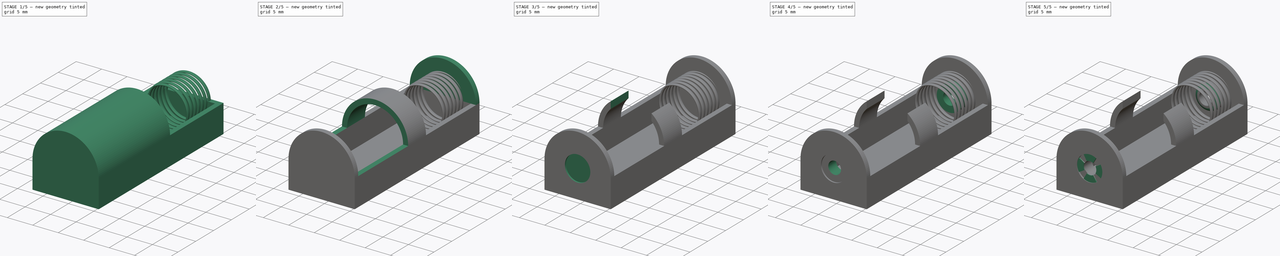
[diagram: build sequence overview — one tinted view per stage of 5, left to right]
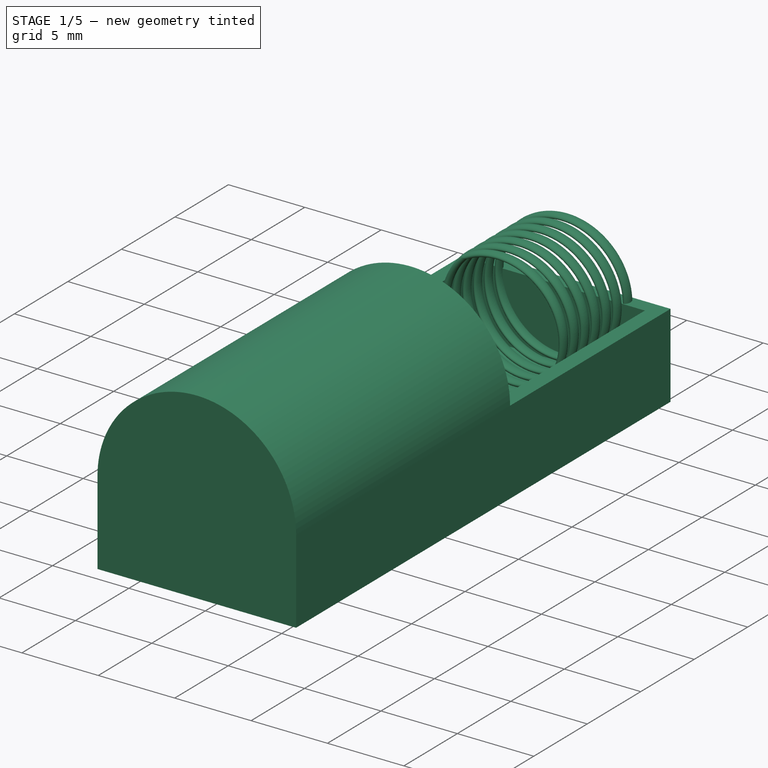
[diagram: stage 1 of 5 — iso view after this stage's code; geometry added in this stage tinted green]
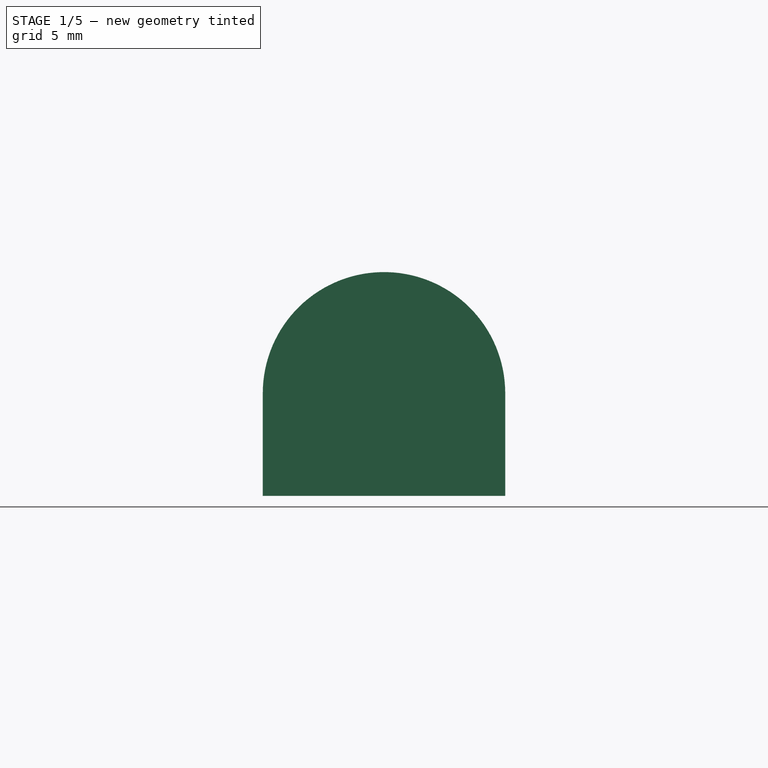
[diagram: stage 1 of 5 — front view after this stage's code; geometry added in this stage tinted green]
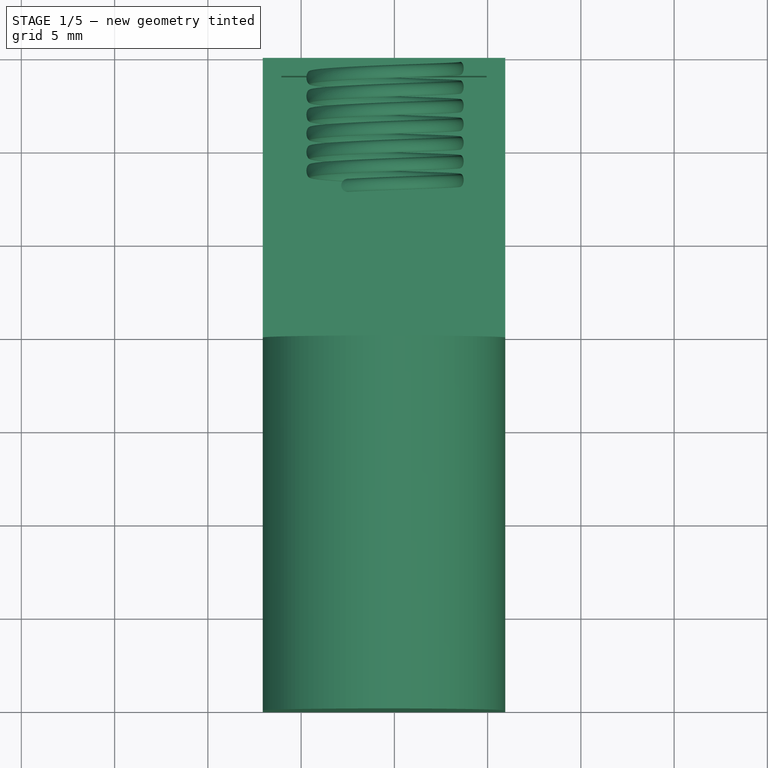
[diagram: stage 1 of 5 — top view after this stage's code; geometry added in this stage tinted green]
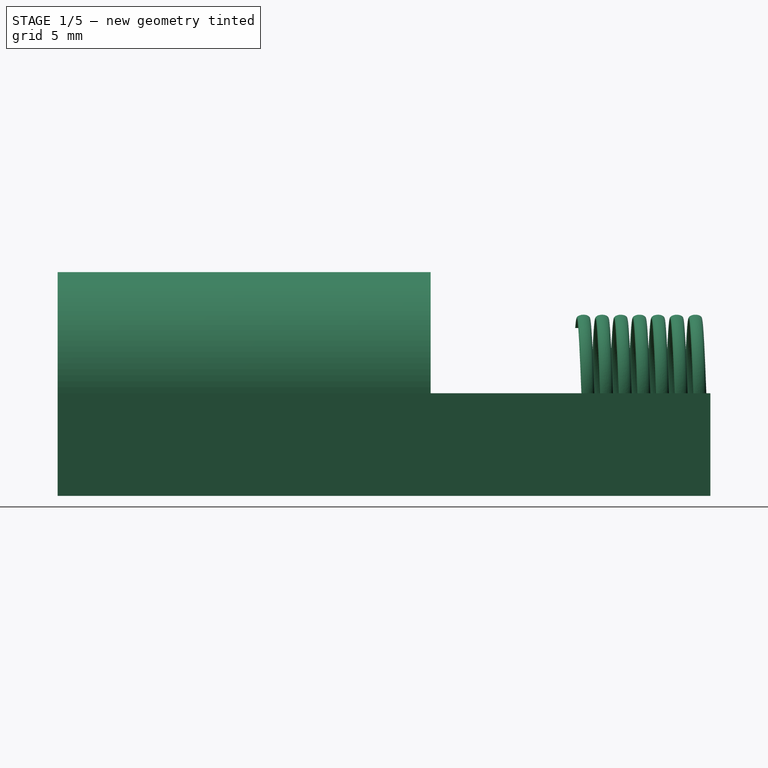
[diagram: stage 1 of 5 — right view after this stage's code; geometry added in this stage tinted green]
FCSTD DOCUMENT  (FreeCAD 0.19R24276 (Git))
Label: porta pila 1
License: All rights reserved
LicenseURL: http://en.wikipedia.org/wiki/All_rights_reserved
objects: Sketcher::SketchObject×16, PartDesign::Pocket×8, PartDesign::Pad×7, PartDesign::Fillet×2, PartDesign::Body×2, Part::Helix×1, Part::Sweep×1
note: 54 computed .brp shape members not serialized (recipe doc carries the construction recipe); baked Part::Feature solids carry a one-line shape summary decoded from their .brp

FEATURE [Sketcher::SketchObject] Sketch
  FullyConstrained = false
  MapMode = 5
  Support = -> [XY_Plane]
  sketch-geometry (4):
    g0: LineSegment StartX=-2.05522 StartY=0 StartZ=0 EndX=10.9448 EndY=0 EndZ=0
    g1: LineSegment StartX=10.9448 StartY=0 StartZ=0 EndX=10.9448 EndY=-35 EndZ=0
    g2: LineSegment StartX=10.9448 StartY=-35 StartZ=0 EndX=-2.05522 EndY=-35 EndZ=0
    g3: LineSegment StartX=-2.05522 StartY=-35 StartZ=0 EndX=-2.05522 EndY=0 EndZ=0
  constraints (11):
    c: Coincident(g0,g1)
    c: Coincident(g1,g2)
    c: Coincident(g2,g3)
    c: Coincident(g3,g0)
    c: Horizontal(g0)
    c: Horizontal(g2)
    c: Vertical(g1)
    c: Vertical(g3)
    c: PointOnObject(g0,g-1)
    c: DistanceX(g0,g0) = 13
    c: DistanceY(g1,g1) = 35
FEATURE [PartDesign::Pad] Pad
  Direction = (1,1,1)
  Length = 5.5
  Length2 = 100
  Profile = -> Sketch
  Type = 0
FEATURE [Sketcher::SketchObject] Sketch001
  ExternalGeometry = -> [Pad]
  FullyConstrained = false
  MapMode = 5
  Placement = pos=(0,0,5.5) rot=(0,0,1;0rad)
  Support = -> [Pad]
  sketch-geometry (12):
    g0: LineSegment StartX=-2.05522 StartY=0 StartZ=0 EndX=-1.05522 EndY=0 EndZ=0
    g1: LineSegment StartX=-2.05522 StartY=0 StartZ=0 EndX=-2.05522 EndY=-1 EndZ=0
    g2: LineSegment StartX=10.9448 StartY=-35 StartZ=0 EndX=10.9448 EndY=-34 EndZ=0
    g3: LineSegment StartX=10.9448 StartY=-35 StartZ=0 EndX=9.94478 EndY=-35 EndZ=0
    g4: LineSegment StartX=-1.05522 StartY=0 StartZ=0 EndX=-1.05522 EndY=-0.96984 EndZ=0
    g5: LineSegment StartX=-1.05522 StartY=-0.96984 StartZ=0 EndX=-2.05522 EndY=-0.96984 EndZ=0
    g6: LineSegment StartX=10.9448 StartY=-34 StartZ=0 EndX=9.94478 EndY=-34 EndZ=0
    g7: LineSegment StartX=9.94478 StartY=-35 StartZ=0 EndX=9.94478 EndY=-34 EndZ=0
    g8: LineSegment StartX=-1.05522 StartY=-0.96984 StartZ=0 EndX=9.94478 EndY=-0.96984 EndZ=0
    g9: LineSegment StartX=9.94478 StartY=-0.96984 StartZ=0 EndX=9.94478 EndY=-34 EndZ=0
    g10: LineSegment StartX=9.94478 StartY=-34 StartZ=0 EndX=-1.05522 EndY=-34 EndZ=0
    g11: LineSegment StartX=-1.05522 StartY=-34 StartZ=0 EndX=-1.05522 EndY=-0.96984 EndZ=0
  constraints (33):
    c: Coincident(g0,g-3)
    c: Horizontal(g0)
    c: Coincident(g1,g0)
    c: Vertical(g1)
    c: DistanceX(g0,g0) = 1
    c: DistanceY(g1,g1) = 1
    c: Coincident(g2,g-4)
    c: Coincident(g3,g2)
    c: Horizontal(g3)
    c: Vertical(g2)
    c: DistanceX(g3,g3) = 1
    c: DistanceY(g2,g2) = 1
    c: Coincident(g4,g0)
    c: Vertical(g4)
    c: PointOnObject(g5,g1)
    c: Horizontal(g5)
    c: Coincident(g6,g2)
    c: Horizontal(g6)
    c: Coincident(g7,g3)
    c: Coincident(g7,g6)
    c: Vertical(g7)
    c: PointOnObject(g4,g5)
    c: PointOnObject(g5,g4)
    c: Coincident(g8,g9)
    c: Coincident(g9,g10)
    c: Coincident(g10,g11)
    c: Coincident(g11,g8)
    c: Horizontal(g8)
    c: Horizontal(g10)
    c: Vertical(g9)
    c: Vertical(g11)
    c: Coincident(g8,g4)
    c: Coincident(g9,g6)
FEATURE [PartDesign::Pocket] Pocket  label="vaciado base"
  BaseFeature = -> Pad
  Length = 4.5
  Length2 = 100
  Profile = -> Sketch001
  Type = 0
FEATURE [Sketcher::SketchObject] Sketch002
  ExternalGeometry = -> [Pocket]
  FullyConstrained = true
  MapMode = 5
  Placement = pos=(0,-35,0) rot=(1,0,0;1.5708rad)
  Support = -> [Pocket]
  sketch-geometry (3):
    g0: GeomPoint X=4.44478 Y=5.5 Z=0
    g1: ArcOfCircle CenterX=4.44478 CenterY=5.5 CenterZ=0 NormalX=0 NormalY=0 NormalZ=1 AngleXU=0 Radius=6.5 StartAngle=0 EndAngle=3.14159
    g2: LineSegment StartX=-2.05522 StartY=5.5 StartZ=0 EndX=10.9448 EndY=5.5 EndZ=0
  constraints (7):
    c: PointOnObject(g0,g-3)
    c: DistanceX(g-3,g0) = 6.5
    c: Coincident(g1,g0)
    c: Coincident(g2,g-3)
    c: Horizontal(g2)
    c: Coincident(g1,g2)
    c: Coincident(g1,g2)
FEATURE [PartDesign::Pad] Pad001  label="suoerficie circular"
  BaseFeature = -> Pocket
  Direction = (1,1,1)
  Length = 20
  Length2 = 100
  Profile = -> Sketch002
  Reversed = true
  Type = 0
FEATURE [PartDesign::Body] Body  label="base"
  Group = -> [Sketch,Pad,Sketch001,Pocket,Sketch002,Pad001,Sketch003,Pocket001,Sketch004,Pad002,Sketch005,Pocket002,Sketch006,Pocket003,Sketch007,Pocket004,Sketch008,Pocket005,Sketch009,Pad003,Sketch010,Pocket006,Sketch011,Pad004,Sketch012,Pocket007,Fillet,Fillet001,Sketch013,Pad005,Sketch014,Pad006]
  Origin = -> Origin
  Tip = -> Pad006
FEATURE [Part::Helix] Helix  label="Hélice"
  Angle = 0
  AttacherType = Attacher::AttachEngine3D
  Height = 6.5
  LocalCoord = 0
  Pitch = 1
  Placement = pos=(4.5,-1,5.5) rot=(1,0,0;1.5708rad)
  Radius = 3.5
  Style = 1
FEATURE [Sketcher::SketchObject] Sketch015
  AttachmentOffset = pos=(6,0.6,9) rot=(0,0,1;0rad)
  FullyConstrained = true
  MapMode = 5
  Placement = pos=(6,0.6,9) rot=(0,0,1;0rad)
  Support = -> [XY_Plane001]
  sketch-geometry (3):
    g0: LineSegment StartX=0 StartY=0 StartZ=0 EndX=-3.5 EndY=0 EndZ=0
    g1: LineSegment StartX=-3.5 StartY=0 StartZ=0 EndX=-3.5 EndY=-7.5 EndZ=0
    g2: Circle CenterX=-3.5 CenterY=-7.5 CenterZ=0 NormalX=0 NormalY=0 NormalZ=1 AngleXU=0 Radius=0.35
  constraints (8):
    c: Coincident(g0,g-1)
    c: Horizontal(g0)
    c: Coincident(g1,g0)
    c: Vertical(g1)
    c: DistanceX(g0,g0) = 3.5
    c: DistanceY(g1,g1) = 7.5
    c: Coincident(g2,g1)
    c: Diameter(g2) = 0.7
FEATURE [PartDesign::Body] Body001
  Group = -> [Sketch015]
  Origin = -> Origin001
  Placement = pos=(4.5,0,5.5) rot=(0,0,1;0rad)
FEATURE [Part::Sweep] Sweep
  Frenet = true
  Sections = -> [Sketch015]
  Solid = true
  Spine = -> Helix [Edge1,Edge2,Edge3,Edge4,Edge5,Edge6,Edge7]
  Transition = 1
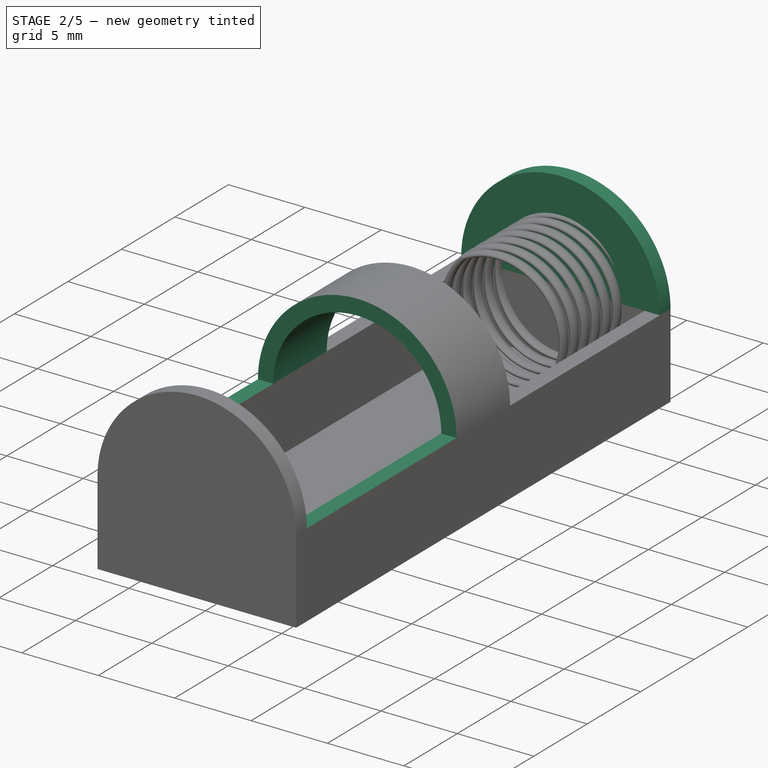
[diagram: stage 2 of 5 — iso view after this stage's code; geometry added in this stage tinted green]
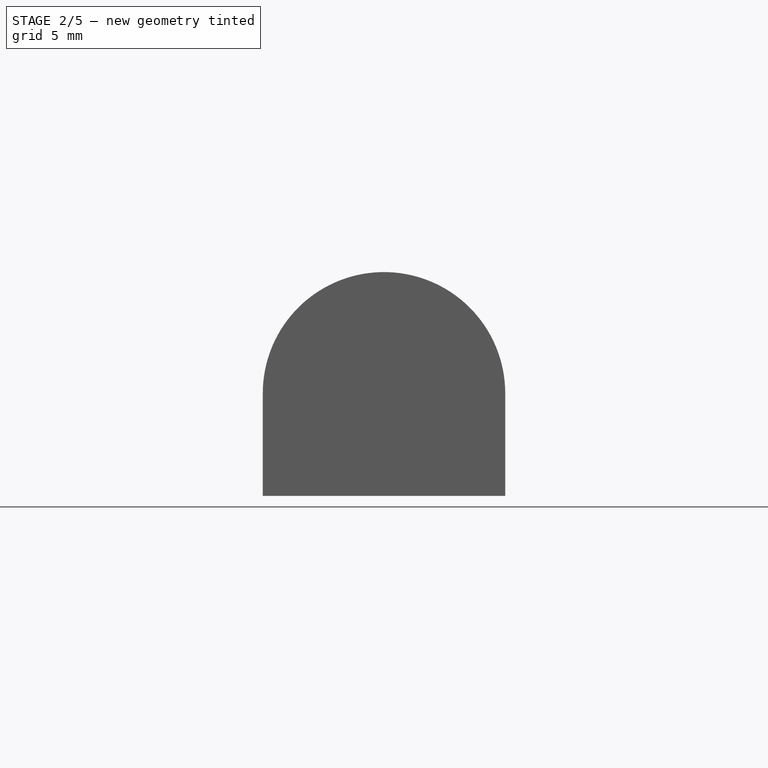
[diagram: stage 2 of 5 — front view after this stage's code; geometry added in this stage tinted green]
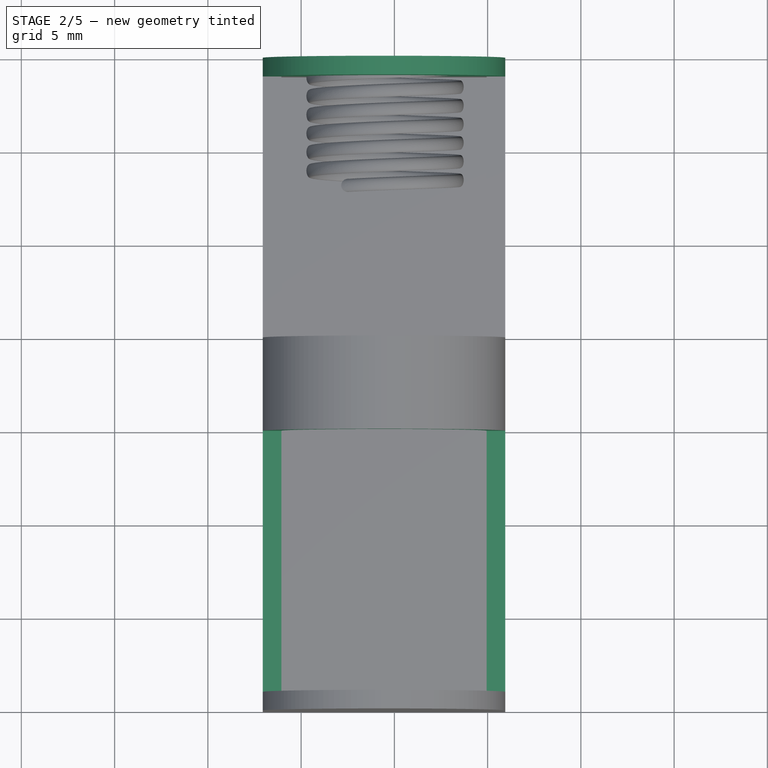
[diagram: stage 2 of 5 — top view after this stage's code; geometry added in this stage tinted green]
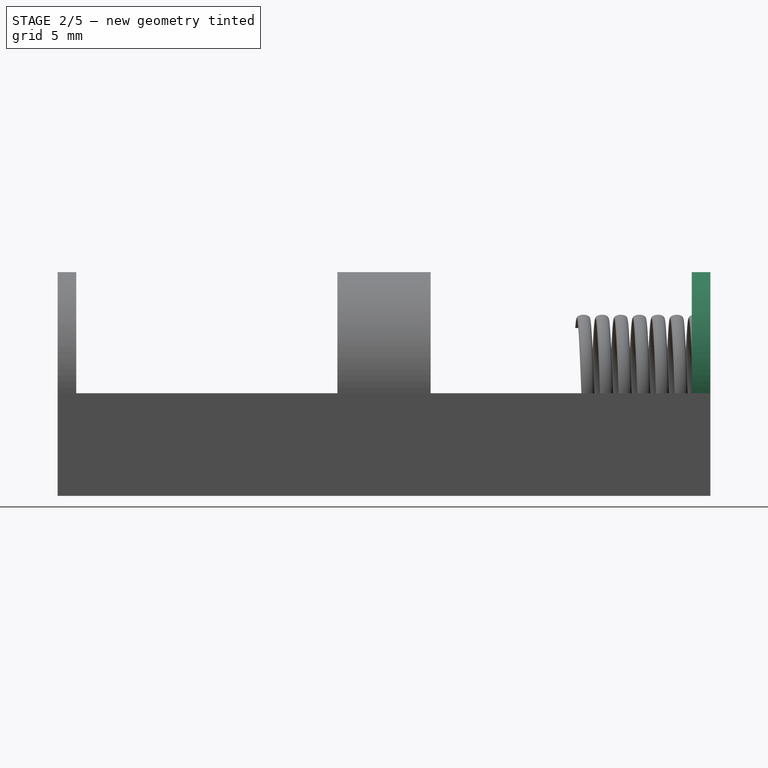
[diagram: stage 2 of 5 — right view after this stage's code; geometry added in this stage tinted green]
FEATURE [Sketcher::SketchObject] Sketch003
  ExternalGeometry = -> [Pad001]
  FullyConstrained = false
  MapMode = 5
  Placement = pos=(10.9448,0,0) rot=(0.57735,0.57735,0.57735;2.0944rad)
  Support = -> [Pad001]
  sketch-geometry (6):
    g0: LineSegment StartX=-35 StartY=5.5 StartZ=0 EndX=-34 EndY=5.5 EndZ=0
    g1: LineSegment StartX=-15 StartY=5.5 StartZ=0 EndX=-20 EndY=5.5 EndZ=0
    g2: LineSegment StartX=-34 StartY=5.5 StartZ=0 EndX=-20 EndY=5.5 EndZ=0
    g3: LineSegment StartX=-20 StartY=5.5 StartZ=0 EndX=-20 EndY=13.6203 EndZ=0
    g4: LineSegment StartX=-20 StartY=13.6203 StartZ=0 EndX=-34 EndY=13.6203 EndZ=0
    g5: LineSegment StartX=-34 StartY=5.5 StartZ=0 EndX=-34 EndY=13.6203 EndZ=0
  constraints (15):
    c: Coincident(g0,g-4)
    c: Coincident(g1,g-3)
    c: Horizontal(g1)
    c: DistanceX(g1,g1) = 5
    c: Horizontal(g0)
    c: DistanceX(g0,g0) = 1
    c: Coincident(g2,g0)
    c: Coincident(g2,g1)
    c: Coincident(g3,g2)
    c: Coincident(g4,g3)
    c: Horizontal(g4)
    c: Coincident(g5,g2)
    c: Coincident(g5,g4)
    c: Vertical(g5)
    c: Vertical(g3)
FEATURE [PartDesign::Pocket] Pocket001  label="vaciado medio superficie"
  BaseFeature = -> Pad001
  Length = 5
  Length2 = 100
  Profile = -> Sketch003
  Type = 1
FEATURE [Sketcher::SketchObject] Sketch004
  ExternalGeometry = -> [Pocket001]
  FullyConstrained = true
  MapMode = 5
  Placement = pos=(0,0,0) rot=(0,0.707107,0.707107;3.14159rad)
  Support = -> [Pocket001]
  sketch-geometry (3):
    g0: GeomPoint X=-4.44478 Y=5.5 Z=0
    g1: ArcOfCircle CenterX=-4.44478 CenterY=5.5 CenterZ=0 NormalX=0 NormalY=0 NormalZ=1 AngleXU=0 Radius=6.5 StartAngle=0 EndAngle=3.14159
    g2: LineSegment StartX=2.05522 StartY=5.5 StartZ=0 EndX=-10.9448 EndY=5.5 EndZ=0
  constraints (6):
    c: PointOnObject(g0,g-3)
    c: Coincident(g1,g0)
    c: Coincident(g2,g-3)
    c: Coincident(g2,g-4)
    c: Coincident(g1,g2)
    c: Coincident(g1,g2)
FEATURE [PartDesign::Pad] Pad002
  BaseFeature = -> Pocket001
  Direction = (1,1,1)
  Length = 1
  Length2 = 100
  Profile = -> Sketch004
  Reversed = true
  Type = 0
FEATURE [Sketcher::SketchObject] Sketch005
  ExternalGeometry = -> [Pad002]
  FullyConstrained = true
  MapMode = 5
  Placement = pos=(0,-15,0) rot=(0,0.707107,0.707107;3.14159rad)
  Support = -> [Pad002]
  sketch-geometry (2):
    g0: ArcOfCircle CenterX=-4.44478 CenterY=5.5 CenterZ=0 NormalX=0 NormalY=0 NormalZ=1 AngleXU=0 Radius=5.5 StartAngle=0 EndAngle=3.14159
    g1: LineSegment StartX=1.05522 StartY=5.5 StartZ=0 EndX=-9.94478 EndY=5.5 EndZ=0
  constraints (6):
    c: Coincident(g0,g-3)
    c: PointOnObject(g-4,g0)
    c: Coincident(g1,g-4)
    c: Coincident(g1,g-4)
    c: Coincident(g0,g1)
    c: Coincident(g0,g1)
FEATURE [PartDesign::Pocket] Pocket002
  BaseFeature = -> Pad002
  Length = 5
  Length2 = 100
  Profile = -> Sketch005
  Type = 0
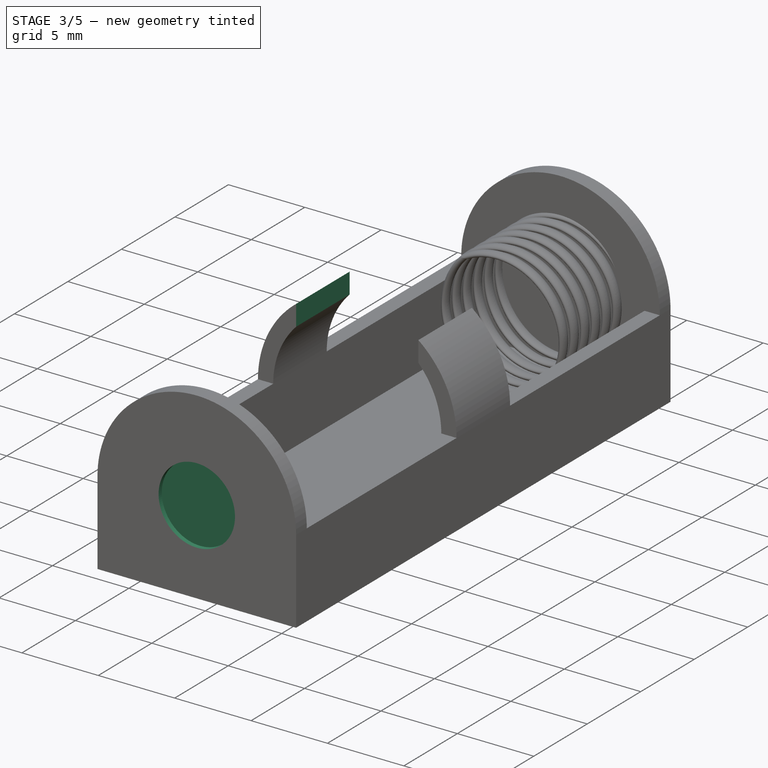
[diagram: stage 3 of 5 — iso view after this stage's code; geometry added in this stage tinted green]
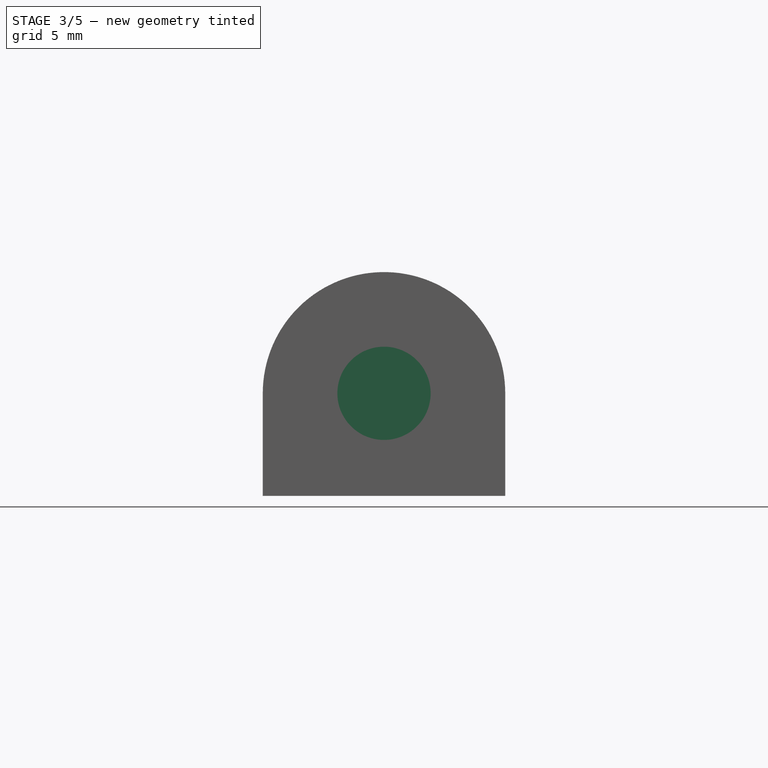
[diagram: stage 3 of 5 — front view after this stage's code; geometry added in this stage tinted green]
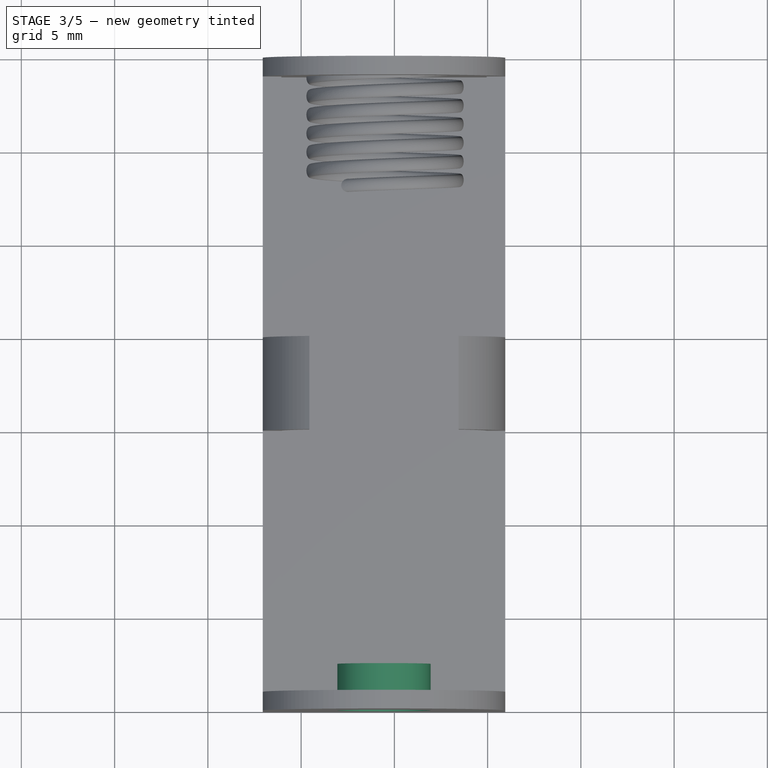
[diagram: stage 3 of 5 — top view after this stage's code; geometry added in this stage tinted green]
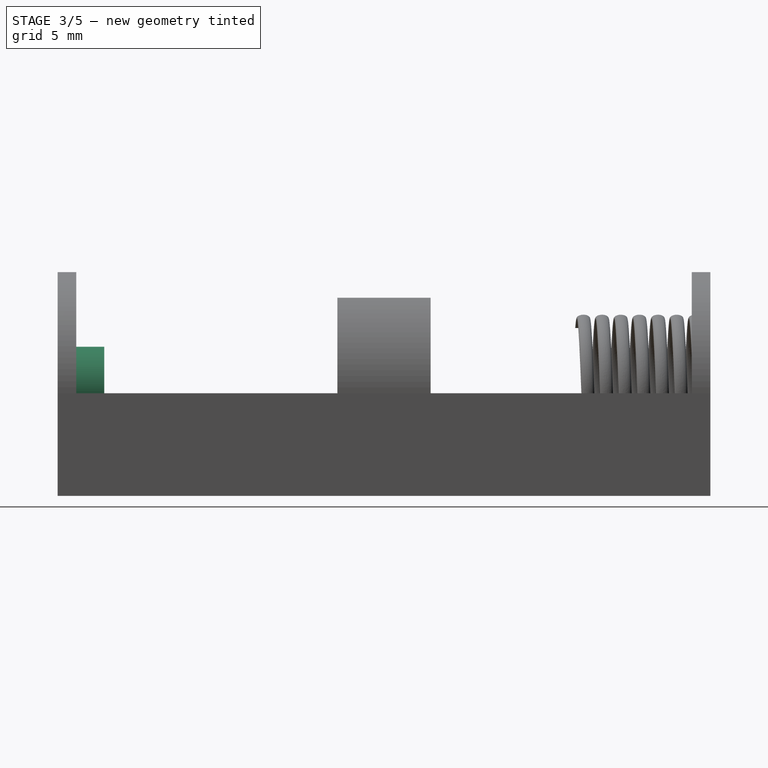
[diagram: stage 3 of 5 — right view after this stage's code; geometry added in this stage tinted green]
FEATURE [Sketcher::SketchObject] Sketch006
  ExternalGeometry = -> [Pocket002]
  FullyConstrained = false
  MapMode = 5
  Placement = pos=(0,-15,0) rot=(0,0.707107,0.707107;3.14159rad)
  Support = -> [Pocket002]
  sketch-geometry (6):
    g0: LineSegment StartX=-4.44478 StartY=5.5 StartZ=0 EndX=-0.444776 EndY=5.5 EndZ=0
    g1: LineSegment StartX=-0.444776 StartY=5.5 StartZ=0 EndX=-0.444776 EndY=16.4968 EndZ=0
    g2: LineSegment StartX=-0.444776 StartY=16.4968 StartZ=0 EndX=-4.44478 EndY=16.4968 EndZ=0
    g3: LineSegment StartX=-4.44478 StartY=16.4968 StartZ=0 EndX=-8.44478 EndY=16.4968 EndZ=0
    g4: LineSegment StartX=-4.44478 StartY=5.5 StartZ=0 EndX=-8.44478 EndY=5.5 EndZ=0
    g5: LineSegment StartX=-8.44478 StartY=5.5 StartZ=0 EndX=-8.44478 EndY=16.4968 EndZ=0
  constraints (14):
    c: Coincident(g0,g1)
    c: Coincident(g1,g2)
    c: Horizontal(g0)
    c: Horizontal(g2)
    c: Vertical(g1)
    c: Coincident(g0,g-4)
    c: Coincident(g3,g2)
    c: Coincident(g4,g0)
    c: Horizontal(g4)
    c: Coincident(g5,g4)
    c: Coincident(g5,g3)
    c: Vertical(g5)
    c: Horizontal(g3)
    c: DistanceX(g4,g4) = 4
FEATURE [PartDesign::Pocket] Pocket003
  BaseFeature = -> Pocket002
  Length = 5
  Length2 = 100
  Profile = -> Sketch006
  Type = 0
FEATURE [Sketcher::SketchObject] Sketch007
  ExternalGeometry = -> [Pocket003]
  FullyConstrained = true
  MapMode = 5
  Placement = pos=(0,0,0) rot=(0,0.707107,0.707107;3.14159rad)
  Support = -> [Pocket003]
  sketch-geometry (1):
    g0: Circle CenterX=-4.44478 CenterY=5.5 CenterZ=0 NormalX=0 NormalY=0 NormalZ=1 AngleXU=0 Radius=2.5
  constraints (2):
    c: Coincident(g0,g-3)
    c: Diameter(g0) = 5
FEATURE [PartDesign::Pocket] Pocket004  label="vaciado bot 0.3"
  BaseFeature = -> Pocket003
  Length = 0.3
  Length2 = 100
  Profile = -> Sketch007
  Type = 0
FEATURE [Sketcher::SketchObject] Sketch008
  ExternalGeometry = -> [Pocket004]
  FullyConstrained = true
  MapMode = 5
  Placement = pos=(0,-35,0) rot=(1,0,0;1.5708rad)
  Support = -> [Pocket004]
  sketch-geometry (1):
    g0: Circle CenterX=4.44478 CenterY=5.5 CenterZ=0 NormalX=0 NormalY=0 NormalZ=1 AngleXU=0 Radius=2.5
  constraints (2):
    c: Coincident(g0,g-3)
    c: Diameter(g0) = 5
FEATURE [PartDesign::Pocket] Pocket005  label="vaciado 0.3 front  circulo 5 mm"
  BaseFeature = -> Pocket004
  Length = 0.3
  Length2 = 100
  Profile = -> Sketch008
  Type = 0
FEATURE [Sketcher::SketchObject] Sketch009
  ExternalGeometry = -> [Pocket005]
  FullyConstrained = true
  MapMode = 5
  Placement = pos=(0,-34,0) rot=(0,0.707107,0.707107;3.14159rad)
  Support = -> [Pocket005]
  sketch-geometry (1):
    g0: Circle CenterX=-4.44478 CenterY=5.5 CenterZ=0 NormalX=0 NormalY=0 NormalZ=1 AngleXU=0 Radius=2.5
  constraints (2):
    c: Coincident(g0,g-3)
    c: Diameter(g0) = 5
FEATURE [PartDesign::Pad] Pad003  label="extrude 5 mm circular front"
  BaseFeature = -> Pocket005
  Direction = (1,1,1)
  Length = 1.5
  Length2 = 100
  Profile = -> Sketch009
  Type = 0
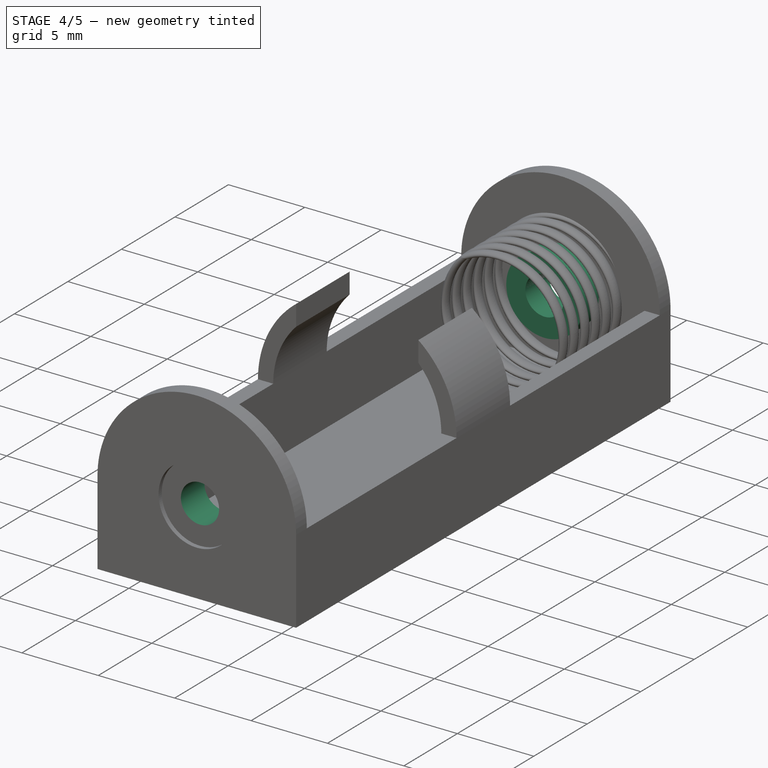
[diagram: stage 4 of 5 — iso view after this stage's code; geometry added in this stage tinted green]
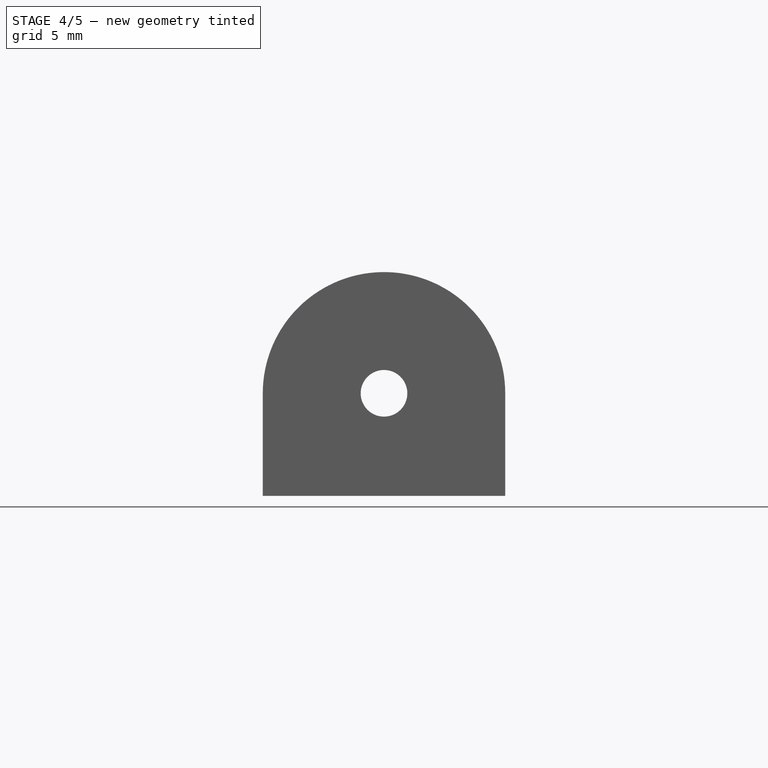
[diagram: stage 4 of 5 — front view after this stage's code; geometry added in this stage tinted green]
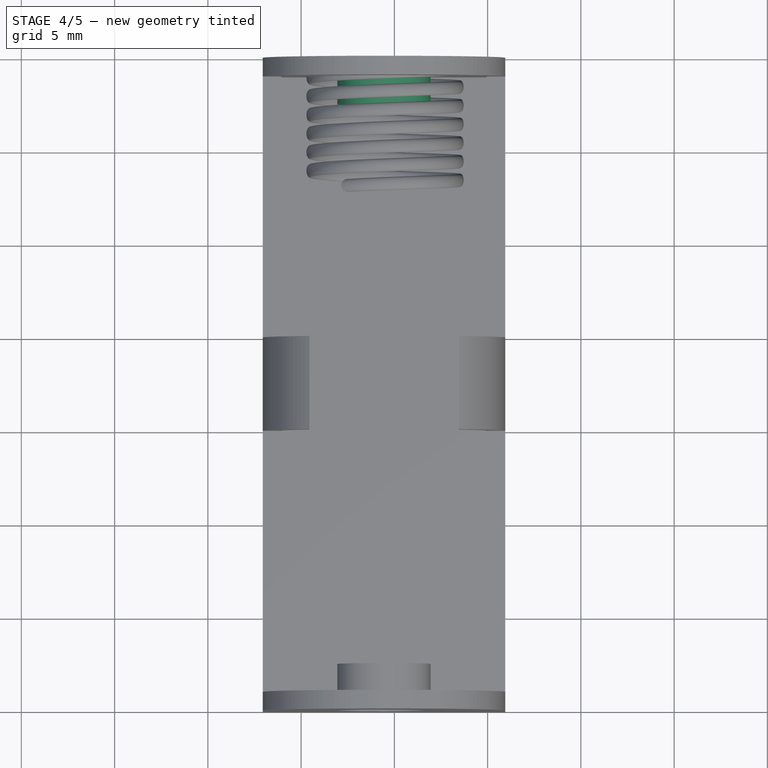
[diagram: stage 4 of 5 — top view after this stage's code; geometry added in this stage tinted green]
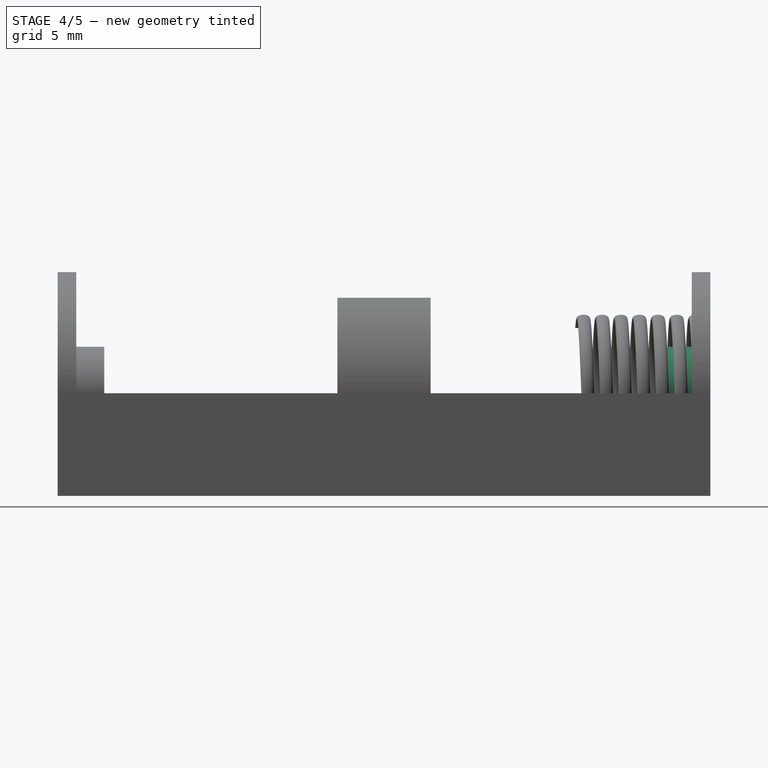
[diagram: stage 4 of 5 — right view after this stage's code; geometry added in this stage tinted green]
FEATURE [Sketcher::SketchObject] Sketch010
  ExternalGeometry = -> [Pad003]
  FullyConstrained = true
  MapMode = 5
  Placement = pos=(0,-32.5,0) rot=(0,0.707107,0.707107;3.14159rad)
  Support = -> [Pad003]
  sketch-geometry (1):
    g0: Circle CenterX=-4.44478 CenterY=5.5 CenterZ=0 NormalX=0 NormalY=0 NormalZ=1 AngleXU=0 Radius=1.25
  constraints (2):
    c: Coincident(g0,g-3)
    c: Diameter(g0) = 2.5
FEATURE [PartDesign::Pocket] Pocket006  label="vaciado 2.5 front"
  BaseFeature = -> Pad003
  Length = 5
  Length2 = 100
  Profile = -> Sketch010
  Type = 0
FEATURE [Sketcher::SketchObject] Sketch011
  ExternalGeometry = -> [Pocket006]
  FullyConstrained = true
  MapMode = 5
  Placement = pos=(0,-1,2e-16) rot=(1,0,0;1.5708rad)
  Support = -> [Pocket006]
  sketch-geometry (1):
    g0: Circle CenterX=4.44478 CenterY=5.5 CenterZ=0 NormalX=0 NormalY=0 NormalZ=1 AngleXU=0 Radius=2.5
  constraints (2):
    c: Coincident(g0,g-3)
    c: Diameter(g0) = 5
FEATURE [PartDesign::Pad] Pad004  label="extrude 5mm circular bot"
  BaseFeature = -> Pocket006
  Direction = (1,1,1)
  Length = 1.5
  Length2 = 100
  Profile = -> Sketch011
  Type = 0
FEATURE [Sketcher::SketchObject] Sketch012
  ExternalGeometry = -> [Pad004]
  FullyConstrained = true
  MapMode = 5
  Placement = pos=(0,-2.5,5e-16) rot=(1,0,0;1.5708rad)
  Support = -> [Pad004]
  sketch-geometry (1):
    g0: Circle CenterX=4.44478 CenterY=5.5 CenterZ=0 NormalX=0 NormalY=0 NormalZ=1 AngleXU=0 Radius=1.25
  constraints (2):
    c: Coincident(g0,g-3)
    c: Diameter(g0) = 2.5
FEATURE [PartDesign::Pocket] Pocket007  label="vaciado 2.5 front001"
  BaseFeature = -> Pad004
  Length = 5
  Length2 = 100
  Profile = -> Sketch012
  Type = 0
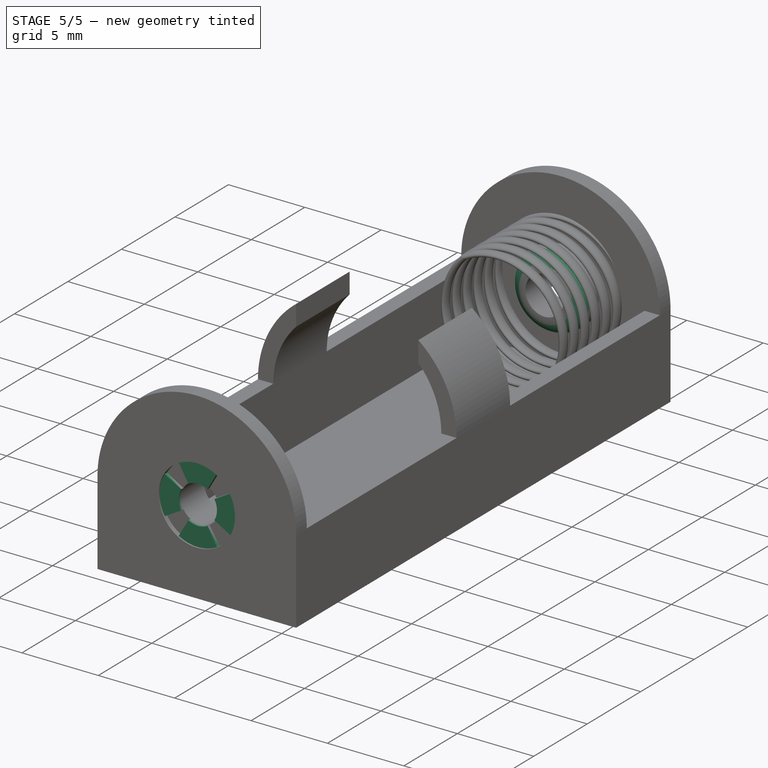
[diagram: stage 5 of 5 — iso view after this stage's code; geometry added in this stage tinted green]
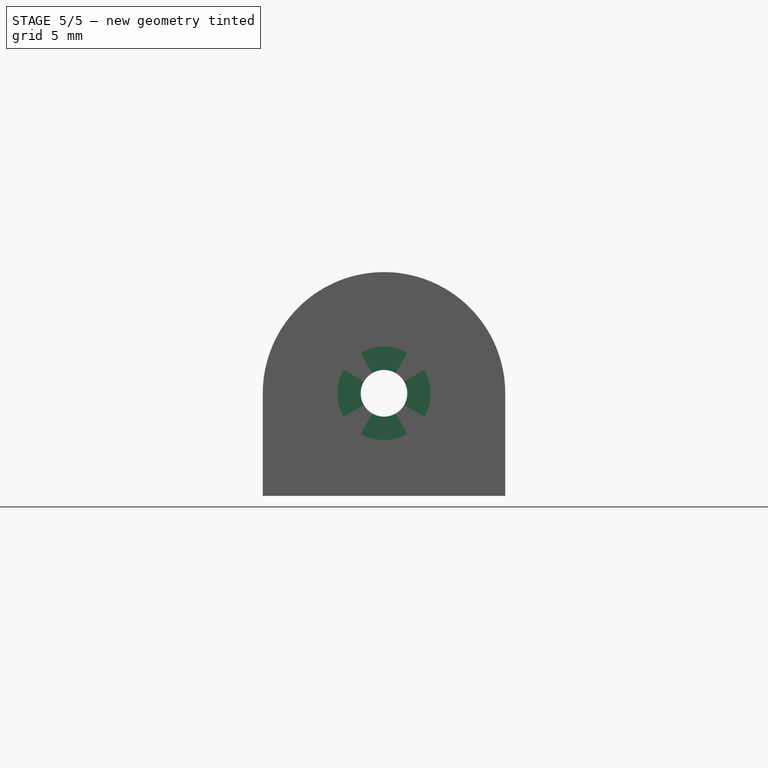
[diagram: stage 5 of 5 — front view after this stage's code; geometry added in this stage tinted green]
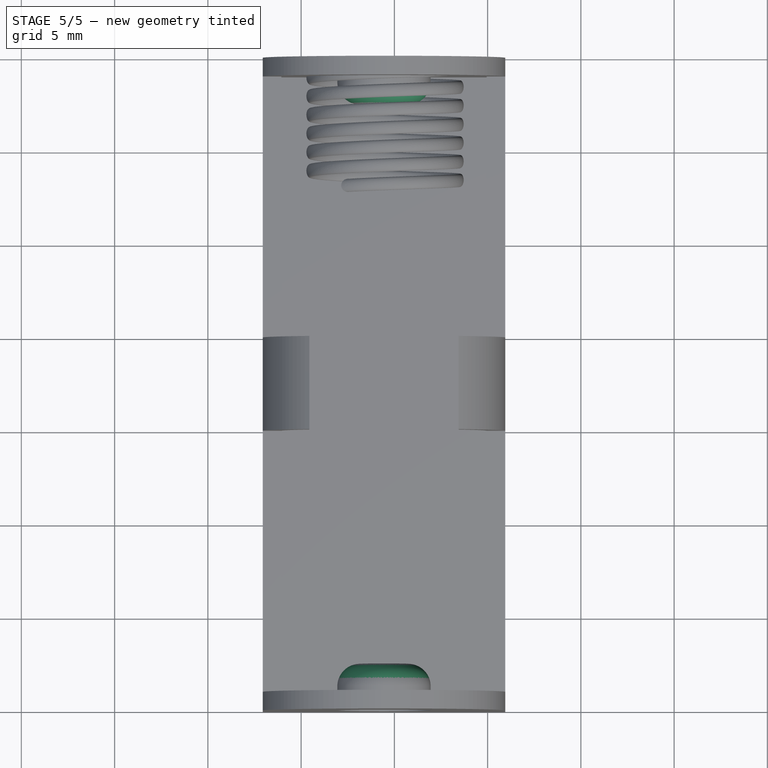
[diagram: stage 5 of 5 — top view after this stage's code; geometry added in this stage tinted green]
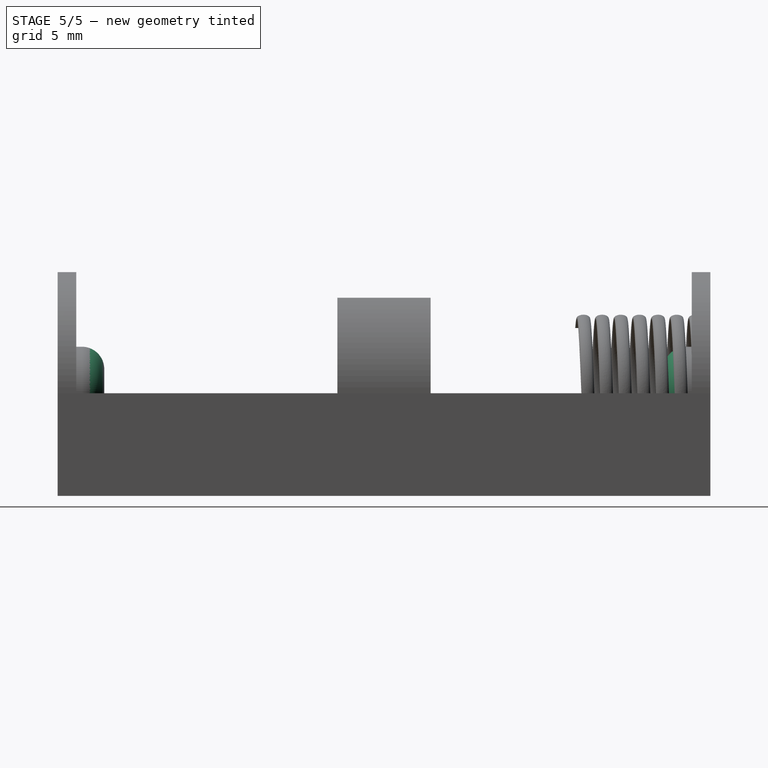
[diagram: stage 5 of 5 — right view after this stage's code; geometry added in this stage tinted green]
FEATURE [PartDesign::Fillet] Fillet
  Base = -> Pocket007 [Edge92]
  BaseFeature = -> Pocket007
  Radius = 1.2
  SupportTransform = false
FEATURE [PartDesign::Fillet] Fillet001
  Base = -> Fillet [Edge97]
  BaseFeature = -> Fillet
  Radius = 1.2
  SupportTransform = false
FEATURE [Sketcher::SketchObject] Sketch013
  ExternalGeometry = -> [Fillet001]
  FullyConstrained = false
  MapMode = 5
  Placement = pos=(0,-0.3,1e-16) rot=(0,0.707107,0.707107;3.14159rad)
  Support = -> [Fillet001]
  sketch-geometry (20):
    g0: ArcOfCircle CenterX=-4.44478 CenterY=5.5 CenterZ=0 NormalX=0 NormalY=0 NormalZ=1 AngleXU=0 Radius=1.26478 StartAngle=2.61799 EndAngle=3.66519
    g1: ArcOfCircle CenterX=-4.44478 CenterY=5.5 CenterZ=0 NormalX=0 NormalY=0 NormalZ=1 AngleXU=0 Radius=2.5 StartAngle=5.75959 EndAngle=6.80678
    g2: LineSegment StartX=-4.44478 StartY=6.76478 StartZ=0 EndX=-4.44478 EndY=8 EndZ=0
    g3: LineSegment StartX=-4.44478 StartY=4.23522 StartZ=0 EndX=-4.44478 EndY=3 EndZ=0
    g4: LineSegment StartX=-3.81238 StartY=6.59533 StartZ=0 EndX=-3.19478 EndY=7.66506 EndZ=0
    g5: LineSegment StartX=-5.54011 StartY=4.86761 StartZ=0 EndX=-6.60984 EndY=4.25 EndZ=0
    g6: LineSegment StartX=-5.70956 StartY=5.5 StartZ=0 EndX=-6.94478 EndY=5.5 EndZ=0
    g7: LineSegment StartX=-3.17999 StartY=5.5 StartZ=0 EndX=-1.94478 EndY=5.5 EndZ=0
    g8: LineSegment StartX=-3.34944 StartY=4.86761 StartZ=0 EndX=-2.27971 EndY=4.25 EndZ=0
    g9: LineSegment StartX=-5.07717 StartY=6.59533 StartZ=0 EndX=-5.69478 EndY=7.66506 EndZ=0
    g10: LineSegment StartX=-5.54011 StartY=6.13239 StartZ=0 EndX=-6.60984 EndY=6.75 EndZ=0
    g11: LineSegment StartX=-5.07717 StartY=4.40467 StartZ=0 EndX=-5.69478 EndY=3.33494 EndZ=0
    g12: LineSegment StartX=-3.81238 StartY=4.40467 StartZ=0 EndX=-3.19478 EndY=3.33494 EndZ=0
    g13: LineSegment StartX=-3.34944 StartY=6.13239 StartZ=0 EndX=-2.27971 EndY=6.75 EndZ=0
    g14: ArcOfCircle CenterX=-4.44478 CenterY=5.5 CenterZ=0 NormalX=0 NormalY=0 NormalZ=1 AngleXU=0 Radius=1.26478 StartAngle=1.0472 EndAngle=2.0944
    g15: ArcOfCircle CenterX=-4.44478 CenterY=5.5 CenterZ=0 NormalX=0 NormalY=0 NormalZ=1 AngleXU=0 Radius=1.26478 StartAngle=5.75959 EndAngle=6.80678
    g16: ArcOfCircle CenterX=-4.44478 CenterY=5.5 CenterZ=0 NormalX=0 NormalY=0 NormalZ=1 AngleXU=0 Radius=1.26478 StartAngle=4.18879 EndAngle=5.23599
    g17: ArcOfCircle CenterX=-4.44478 CenterY=5.5 CenterZ=0 NormalX=0 NormalY=0 NormalZ=1 AngleXU=0 Radius=2.5 StartAngle=1.0472 EndAngle=2.0944
    g18: ArcOfCircle CenterX=-4.44478 CenterY=5.5 CenterZ=0 NormalX=0 NormalY=0 NormalZ=1 AngleXU=0 Radius=2.5 StartAngle=2.61799 EndAngle=3.66519
    g19: ArcOfCircle CenterX=-4.44478 CenterY=5.5 CenterZ=0 NormalX=0 NormalY=0 NormalZ=1 AngleXU=0 Radius=2.5 StartAngle=4.18879 EndAngle=5.23599
  constraints (53):
    c: Coincident(g0,g-4)
    c: Coincident(g1,g0)
    c: PointOnObject(g-4,g1)
    c: PointOnObject(g2,g1)
    c: Vertical(g2)
    c: PointOnObject(g3,g1)
    c: Vertical(g3)
    c: PointOnObject(g5,g1)
    c: Coincident(g6,g-4)
    c: Coincident(g7,g-4)
    c: PointOnObject(g9,g1)
    c: Angle(g4,g2) = 0.523599
    c: Angle(g2,g9) = 0.523599
    c: Angle(g8,g7) = 0.523599
    c: Angle(g6,g5) = 0.523599
    c: PointOnObject(g10,g1)
    c: PointOnObject(g11,g1)
    c: Angle(g7,g13) = 0.523599
    c: Angle(g10,g6) = 0.523599
    c: Angle(g11,g3) = 0.523599
    c: Angle(g3,g12) = 0.523599
    c: PointOnObject(g2,g0)
    c: PointOnObject(g6,g0)
    c: Coincident(g0,g10)
    c: Coincident(g14,g9)
    c: Equal(g0,g14)
    c: Coincident(g14,g4)
    c: Coincident(g0,g14)
    c: Coincident(g13,g15)
    c: PointOnObject(g7,g0)
    c: PointOnObject(g3,g0)
    c: Equal(g0,g15)
    c: Coincident(g16,g12)
    c: Coincident(g15,g8)
    c: Coincident(g0,g15)
    c: Equal(g0,g16)
    c: Coincident(g0,g5)
    c: Coincident(g16,g11)
    c: Coincident(g0,g16)
    c: Coincident(g1,g8)
    c: Coincident(g19,g12)
    c: Equal(g1,g17)
    c: Coincident(g1,g13)
    c: Coincident(g17,g4)
    c: Coincident(g1,g17)
    c: Equal(g17,g18)
    c: PointOnObject(g17,g9)
    c: PointOnObject(g18,g10)
    c: Coincident(g17,g18)
    c: Equal(g18,g19)
    c: PointOnObject(g18,g5)
    c: PointOnObject(g19,g11)
    c: Coincident(g18,g19)
FEATURE [PartDesign::Pad] Pad005  label="extrude 0.2 mm bot "
  BaseFeature = -> Fillet001
  Direction = (1,1,1)
  Length = 0.2
  Length2 = 100
  Profile = -> Sketch013
  Type = 0
FEATURE [Sketcher::SketchObject] Sketch014
  ExternalGeometry = -> [Pad005]
  FullyConstrained = false
  MapMode = 5
  Placement = pos=(0,-34.7,0) rot=(1,0,0;1.5708rad)
  Support = -> [Pad005]
  sketch-geometry (20):
    g0: ArcOfCircle CenterX=4.44478 CenterY=5.5 CenterZ=0 NormalX=0 NormalY=0 NormalZ=1 AngleXU=0 Radius=1.25 StartAngle=1.0472 EndAngle=2.0944
    g1: ArcOfCircle CenterX=4.44478 CenterY=5.5 CenterZ=0 NormalX=0 NormalY=0 NormalZ=1 AngleXU=0 Radius=2.56302 StartAngle=1.0472 EndAngle=2.0944
    g2: LineSegment StartX=4.44478 StartY=6.75 StartZ=0 EndX=4.44478 EndY=8.06302 EndZ=0
    g3: LineSegment StartX=4.44478 StartY=4.25 StartZ=0 EndX=4.44478 EndY=2.93698 EndZ=0
    g4: LineSegment StartX=5.69478 StartY=5.5 StartZ=0 EndX=7.00779 EndY=5.5 EndZ=0
    g5: LineSegment StartX=3.19478 StartY=5.5 StartZ=0 EndX=1.88176 EndY=5.5 EndZ=0
    g6: LineSegment StartX=5.06978 StartY=6.58253 StartZ=0 EndX=5.72629 EndY=7.71964 EndZ=0
    g7: LineSegment StartX=3.81978 StartY=6.58253 StartZ=0 EndX=3.16327 EndY=7.71964 EndZ=0
    g8: LineSegment StartX=3.36224 StartY=6.125 StartZ=0 EndX=2.22514 EndY=6.78151 EndZ=0
    g9: LineSegment StartX=3.36224 StartY=4.875 StartZ=0 EndX=2.22514 EndY=4.21849 EndZ=0
    g10: LineSegment StartX=3.81978 StartY=4.41747 StartZ=0 EndX=3.16327 EndY=3.28036 EndZ=0
    g11: LineSegment StartX=5.06978 StartY=4.41747 StartZ=0 EndX=5.72629 EndY=3.28036 EndZ=0
    g12: LineSegment StartX=5.52731 StartY=6.125 StartZ=0 EndX=6.66441 EndY=6.78151 EndZ=0
    g13: LineSegment StartX=5.52731 StartY=4.875 StartZ=0 EndX=6.66441 EndY=4.21849 EndZ=0
    g14: ArcOfCircle CenterX=4.44478 CenterY=5.5 CenterZ=0 NormalX=0 NormalY=0 NormalZ=1 AngleXU=0 Radius=1.25 StartAngle=2.61799 EndAngle=3.66519
    g15: ArcOfCircle CenterX=4.44478 CenterY=5.5 CenterZ=0 NormalX=0 NormalY=0 NormalZ=1 AngleXU=0 Radius=1.25 StartAngle=4.18879 EndAngle=5.23599
    g16: ArcOfCircle CenterX=4.44478 CenterY=5.5 CenterZ=0 NormalX=0 NormalY=0 NormalZ=1 AngleXU=0 Radius=1.25 StartAngle=5.75959 EndAngle=6.80678
    g17: ArcOfCircle CenterX=4.44478 CenterY=5.5 CenterZ=0 NormalX=0 NormalY=0 NormalZ=1 AngleXU=0 Radius=2.56302 StartAngle=2.61799 EndAngle=3.66519
    g18: ArcOfCircle CenterX=4.44478 CenterY=5.5 CenterZ=0 NormalX=0 NormalY=0 NormalZ=1 AngleXU=0 Radius=2.56302 StartAngle=4.18879 EndAngle=5.23599
    g19: ArcOfCircle CenterX=4.44478 CenterY=5.5 CenterZ=0 NormalX=0 NormalY=0 NormalZ=1 AngleXU=0 Radius=2.56302 StartAngle=5.75959 EndAngle=6.80678
  constraints (55):
    c: Coincident(g0,g-4)
    c: Tangent(g0,g-3)
    c: Coincident(g1,g0)
    c: PointOnObject(g2,g1)
    c: PointOnObject(g3,g1)
    c: PointOnObject(g4,g1)
    c: PointOnObject(g5,g1)
    c: Vertical(g2)
    c: Vertical(g3)
    c: Horizontal(g4)
    c: Horizontal(g5)
    c: PointOnObject(g9,g1)
    c: PointOnObject(g10,g1)
    c: PointOnObject(g11,g1)
    c: PointOnObject(g13,g1)
    c: Angle(g6,g2) = 0.523599
    c: Angle(g2,g7) = 0.523599
    c: Angle(g8,g5) = 0.523599
    c: Angle(g5,g9) = 0.523599
    c: Angle(g4,g12) = 0.523599
    c: Angle(g13,g4) = 0.523599
    c: Angle(g3,g11) = 0.523599
    c: Angle(g10,g3) = 0.523599
    c: Equal(g0,g14)
    c: Coincident(g0,g14)
    c: Equal(g14,g15)
    c: Coincident(g14,g15)
    c: Equal(g15,g16)
    c: Coincident(g15,g16)
    c: Coincident(g13,g16)
    c: PointOnObject(g4,g16)
    c: Coincident(g12,g16)
    c: Coincident(g1,g6)
    c: Coincident(g19,g12)
    c: Equal(g1,g17)
    c: Coincident(g1,g7)
    c: Coincident(g17,g8)
    c: Coincident(g1,g17)
    c: Equal(g17,g18)
    c: PointOnObject(g17,g9)
    c: PointOnObject(g18,g10)
    c: Coincident(g17,g18)
    c: Coincident(g10,g15)
    c: PointOnObject(g3,g15)
    c: Coincident(g11,g15)
    c: Coincident(g8,g14)
    c: PointOnObject(g5,g14)
    c: Coincident(g9,g14)
    c: Coincident(g7,g0)
    c: PointOnObject(g2,g0)
    c: Coincident(g6,g0)
    c: Equal(g18,g19)
    c: PointOnObject(g18,g11)
    c: PointOnObject(g19,g13)
    c: Coincident(g18,g19)
FEATURE [PartDesign::Pad] Pad006  label="extrude 0.2 mm front "
  BaseFeature = -> Pad005
  Direction = (1,1,1)
  Length = 0.2
  Length2 = 100
  Profile = -> Sketch014
  Type = 0
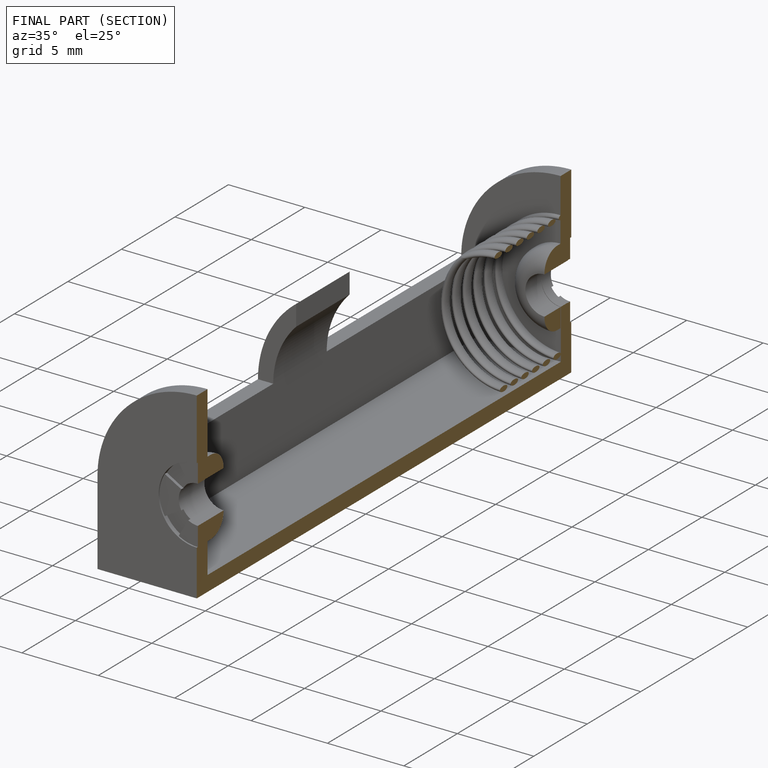
[diagram: finished part — half-section view (interior)]
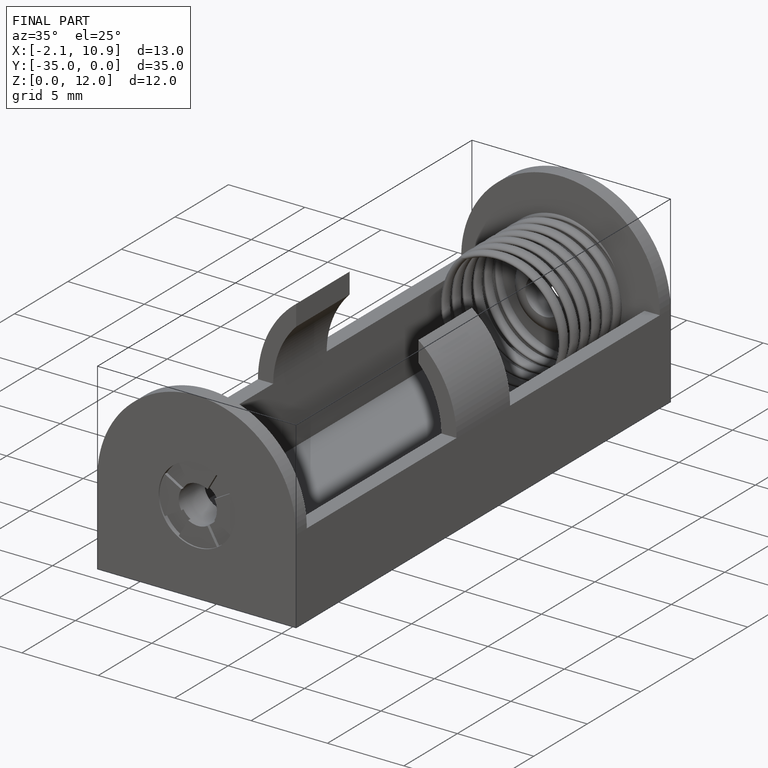
[diagram: finished part — iso view with bounding-box wireframe]
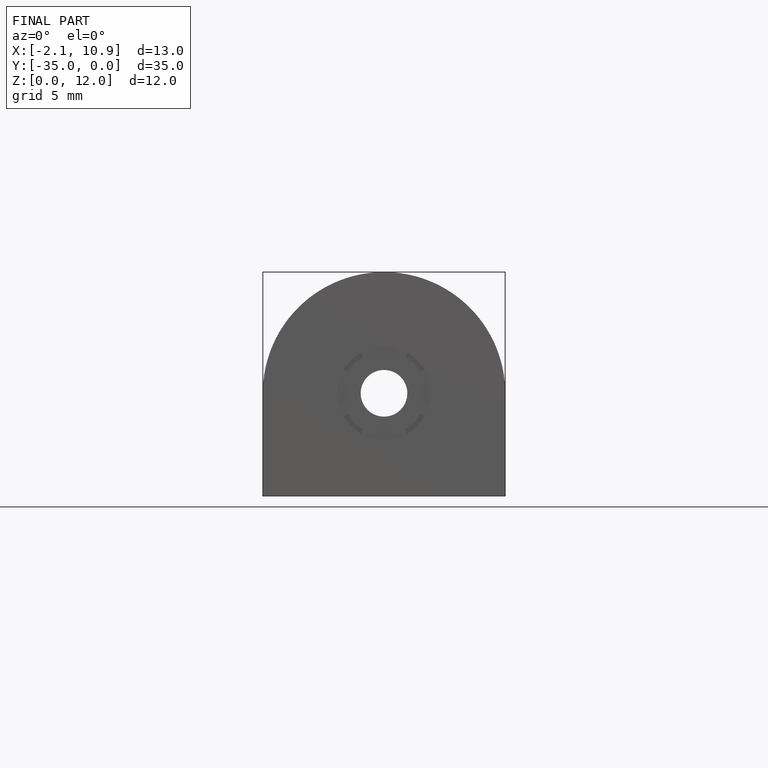
[diagram: finished part — front view with bounding-box wireframe]
